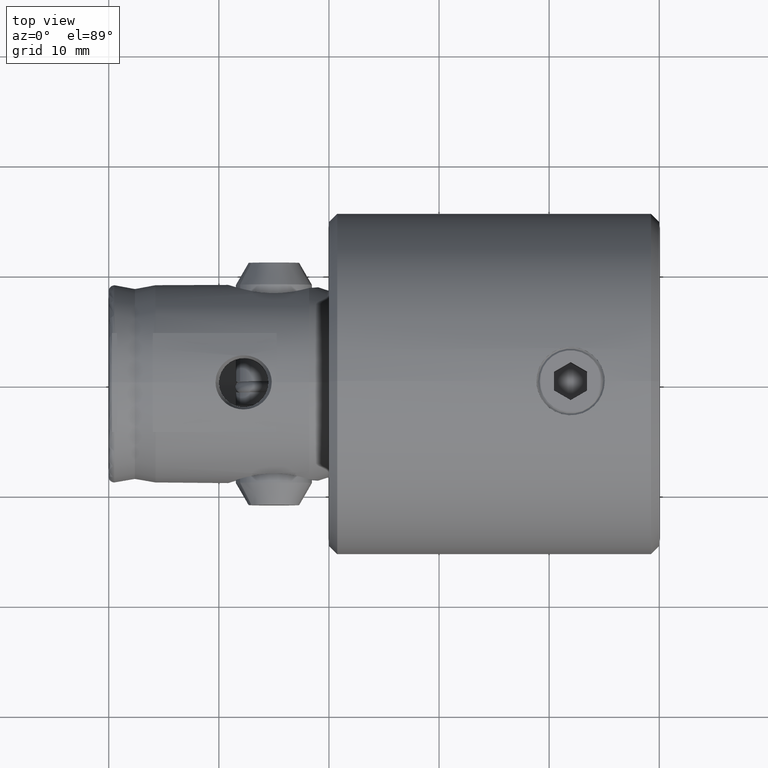
[diagram: clean part render]
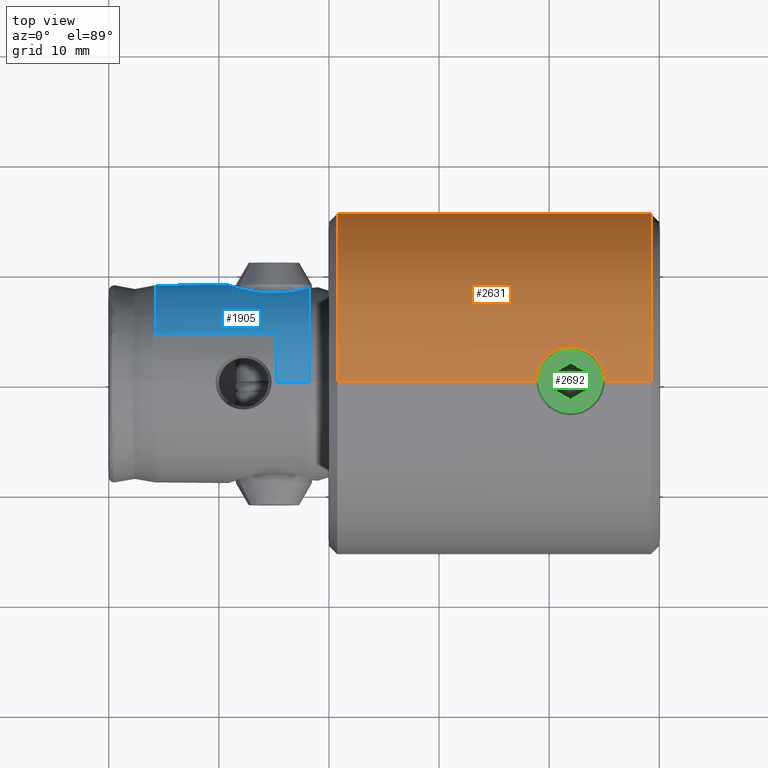
[diagram: same view with three faces highlighted in distinct colors, each labeled with its STEP entity id]
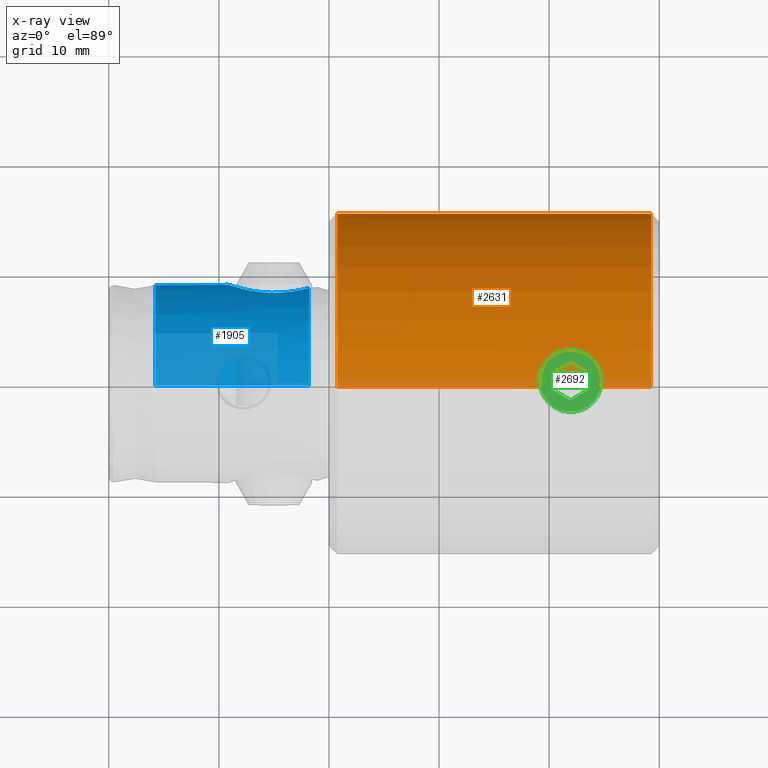
[diagram: x-ray of the same camera — body ghosted, the three highlighted faces saturated]
A machine part, top view with three faces highlighted in distinct colors.
The next image is the same camera in x-ray (body ghosted, the three faces saturated) — at least one of them is partly hidden behind the body in this view.
Their STEP definitions:

[orange] entity #2631 — the highlighted cylindrical surface (partial cylindrical patch) has radius 15.5 mm, axis along (1, 0, 0).
#18 = CARTESIAN_POINT ( 'NONE',  ( 15.19093161831337500, 3.080131874408717200, 7.645278494736486700 ) ) ;
#49 = CARTESIAN_POINT ( 'NONE',  ( 15.42543559125432600, 1.563883349797126500, 5.343100149421043300 ) ) ;
#66 = FACE_OUTER_BOUND ( 'NONE', #3696, .T. ) ;
#162 = CARTESIAN_POINT ( 'NONE',  ( 15.50000000000000000, 1.898202538678397600E-015, 29.24999999999999300 ) ) ;
#190 = AXIS2_PLACEMENT_3D ( 'NONE', #4119, #1878, #855 ) ;
#289 = CARTESIAN_POINT ( 'NONE',  ( 15.50000000000000000, 1.898202969930968600E-015, 11.15000000000000000 ) ) ;
#309 = CARTESIAN_POINT ( 'NONE',  ( 15.38501148198689500, 1.892151890150584700, 10.51393058801319000 ) ) ;
#338 = CARTESIAN_POINT ( 'NONE',  ( 15.38471761695623000, 1.908714639946675500, 5.574285974368625500 ) ) ;
#381 = DIRECTION ( 'NONE',  ( 0.0000000000000000000, 0.0000000000000000000, -1.000000000000000000 ) ) ;
#428 = ORIENTED_EDGE ( 'NONE', *, *, #3477, .T. ) ;
#580 = ORIENTED_EDGE ( 'NONE', *, *, #4219, .F. ) ;
#623 = ORIENTED_EDGE ( 'NONE', *, *, #4124, .T. ) ;
#626 = EDGE_CURVE ( 'NONE', #3496, #2128, #1032, .T. ) ;
#639 = CARTESIAN_POINT ( 'NONE',  ( -15.50000000000000000, 0.0000000000000000000, 30.00000000000000000 ) ) ;
#654 = CARTESIAN_POINT ( 'NONE',  ( 15.32398421011904000, 2.333743468943447300, 10.10047887898981000 ) ) ;
#659 = VERTEX_POINT ( 'NONE', #2174 ) ;
#807 = CARTESIAN_POINT ( 'NONE',  ( 0.0000000000000000000, 0.0000000000000000000, 30.00000000000000000 ) ) ;
#845 = LINE ( 'NONE', #639, #2488 ) ;
#855 = DIRECTION ( 'NONE',  ( 1.000000000000000000, 0.0000000000000000000, 0.0000000000000000000 ) ) ;
#953 = CARTESIAN_POINT ( 'NONE',  ( 15.50000000000000200, 0.2025497740821276800, 11.14999999999999900 ) ) ;
#964 = B_SPLINE_CURVE_WITH_KNOTS ( 'NONE', 3,
 ( #289, #953, #968, #2620, #3590, #3918, #4252, #309, #2633, #654, #2966, #999, #3293, #1322, #3607, #1397, #3008, #1039, #18, #1727, #3350, #2388, #1692, #2673, #2024, #338, #49, #2352, #2688, #3993, #3670, #2657 ),
 .UNSPECIFIED., .F., .F.,
 ( 4, 2, 2, 2, 2, 2, 2, 2, 2, 2, 2, 2, 2, 2, 2, 4 ),
 ( 0.009716551934857063600, 0.01032367954105278000, 0.01093080714724849400, 0.01153793475344420900, 0.01214506235963992400, 0.01275218996583563900, 0.01335931757203135500, 0.01396644517822706900, 0.01457357278442278500, 0.01518070039061849900, 0.01578782799681421500, 0.01639495560300992900, 0.01700208320920564700, 0.01821633842159707200, 0.01882346602779278600, 0.01943059363398850000 ),
 .UNSPECIFIED. ) ;
#968 = CARTESIAN_POINT ( 'NONE',  ( 15.49603090925379300, 0.4042348462036051700, 11.13034235379925900 ) ) ;
#999 = CARTESIAN_POINT ( 'NONE',  ( 15.26541876093223700, 2.688855372817281300, 9.605891185076549400 ) ) ;
#1008 = LINE ( 'NONE', #2444, #2649 ) ;
#1032 = LINE ( 'NONE', #2160, #1092 ) ;
#1039 = CARTESIAN_POINT ( 'NONE',  ( 15.18681554872190600, 3.100102175744615000, 7.846882900018611600 ) ) ;
#1092 = VECTOR ( 'NONE', #2185, 1000.000000000000000 ) ;
#1122 = CIRCLE ( 'NONE', #3610, 15.50000000000000000 ) ;
#1217 = VERTEX_POINT ( 'NONE', #3126 ) ;
#1322 = CARTESIAN_POINT ( 'NONE',  ( 15.21870443652431800, 2.940640067627605400, 9.052054006809472100 ) ) ;
#1392 = DIRECTION ( 'NONE',  ( 0.0000000000000000000, 0.0000000000000000000, 1.000000000000000000 ) ) ;
#1397 = CARTESIAN_POINT ( 'NONE',  ( 15.19106502022203900, 3.079476722188208400, 8.459497161349084100 ) ) ;
#1409 = CARTESIAN_POINT ( 'NONE',  ( 0.0000000000000000000, 0.0000000000000000000, 0.7500000000000006700 ) ) ;
#1468 = CARTESIAN_POINT ( 'NONE',  ( 15.50000000000000000, 1.898202538678397600E-015, 0.7500000000000006700 ) ) ;
#1487 = DIRECTION ( 'NONE',  ( 0.0000000000000000000, 0.0000000000000000000, -1.000000000000000000 ) ) ;
#1692 = CARTESIAN_POINT ( 'NONE',  ( 15.26502125744575300, 2.691127775693408900, 6.497908967070976900 ) ) ;
#1727 = CARTESIAN_POINT ( 'NONE',  ( 15.20670291572052300, 3.001300089800838400, 7.247996489077015000 ) ) ;
#1846 = CYLINDRICAL_SURFACE ( 'NONE', #3476, 15.50000000000000000 ) ;
#1878 = DIRECTION ( 'NONE',  ( -0.0000000000000000000, -0.0000000000000000000, -1.000000000000000000 ) ) ;
#2024 = CARTESIAN_POINT ( 'NONE',  ( 15.32366395083676000, 2.335809293239375300, 6.001931928870467600 ) ) ;
#2099 = DIRECTION ( 'NONE',  ( -1.000000000000000000, 0.0000000000000000000, 0.0000000000000000000 ) ) ;
#2106 = DIRECTION ( 'NONE',  ( 1.000000000000000000, 0.0000000000000000000, 0.0000000000000000000 ) ) ;
#2128 = VERTEX_POINT ( 'NONE', #3518 ) ;
#2160 = CARTESIAN_POINT ( 'NONE',  ( 15.50000000000000000, 1.898202538678397600E-015, 30.00000000000000000 ) ) ;
#2174 = CARTESIAN_POINT ( 'NONE',  ( 15.50000000000000000, -2.928304753669248300E-016, 4.949999999999999300 ) ) ;
#2185 = DIRECTION ( 'NONE',  ( 0.0000000000000000000, 0.0000000000000000000, -1.000000000000000000 ) ) ;
#2232 = CARTESIAN_POINT ( 'NONE',  ( -15.50000000000000000, 0.0000000000000000000, 0.7500000000000006700 ) ) ;
#2263 = ORIENTED_EDGE ( 'NONE', *, *, #3459, .T. ) ;
#2352 = CARTESIAN_POINT ( 'NONE',  ( 15.46853306975695800, 1.004705552767855400, 5.110386720086009600 ) ) ;
#2388 = CARTESIAN_POINT ( 'NONE',  ( 15.24773329965242600, 2.786191647179588200, 6.675876050782875400 ) ) ;
#2444 = CARTESIAN_POINT ( 'NONE',  ( 15.50000000000000000, 1.898202538678397600E-015, 30.00000000000000000 ) ) ;
#2488 = VECTOR ( 'NONE', #381, 1000.000000000000000 ) ;
#2620 = CARTESIAN_POINT ( 'NONE',  ( 15.48034332064266600, 0.8058228257305304300, 11.05042736973026200 ) ) ;
#2631 = ADVANCED_FACE ( 'NONE', ( #66 ), #1846, .T. ) ;
#2633 = CARTESIAN_POINT ( 'NONE',  ( 15.36480298398791300, 2.047847629597920400, 10.38605271729250000 ) ) ;
#2649 = VECTOR ( 'NONE', #3398, 1000.000000000000000 ) ;
#2657 = CARTESIAN_POINT ( 'NONE',  ( 15.50000000000000000, -2.928304753669248300E-016, 4.949999999999999300 ) ) ;
#2673 = CARTESIAN_POINT ( 'NONE',  ( 15.30301845369671900, 2.465901235085661700, 6.160426932238334700 ) ) ;
#2688 = CARTESIAN_POINT ( 'NONE',  ( 15.48021653027960900, 0.8080677240030369500, 5.050226149633598300 ) ) ;
#2966 = CARTESIAN_POINT ( 'NONE',  ( 15.30325759541461700, 2.464398533300785400, 9.941422867788213900 ) ) ;
#3007 = ORIENTED_EDGE ( 'NONE', *, *, #3191, .T. ) ;
#3008 = CARTESIAN_POINT ( 'NONE',  ( 15.18685742069663300, 3.099897045772575900, 8.256224057694039300 ) ) ;
#3126 = CARTESIAN_POINT ( 'NONE',  ( -15.50000000000000000, 0.0000000000000000000, 29.24999999999999300 ) ) ;
#3191 = EDGE_CURVE ( 'NONE', #2128, #659, #964, .T. ) ;
#3293 = CARTESIAN_POINT ( 'NONE',  ( 15.24808738570480000, 2.784270067994870000, 9.428156895410548800 ) ) ;
#3350 = CARTESIAN_POINT ( 'NONE',  ( 15.21855589853567300, 2.941392703344412500, 7.050355319457147600 ) ) ;
#3398 = DIRECTION ( 'NONE',  ( 0.0000000000000000000, 0.0000000000000000000, -1.000000000000000000 ) ) ;
#3459 = EDGE_CURVE ( 'NONE', #3539, #3638, #1122, .T. ) ;
#3476 = AXIS2_PLACEMENT_3D ( 'NONE', #807, #1487, #2099 ) ;
#3477 = EDGE_CURVE ( 'NONE', #659, #3539, #1008, .T. ) ;
#3496 = VERTEX_POINT ( 'NONE', #162 ) ;
#3518 = CARTESIAN_POINT ( 'NONE',  ( 15.50000000000000000, 1.898202969930968600E-015, 11.15000000000000000 ) ) ;
#3539 = VERTEX_POINT ( 'NONE', #1468 ) ;
#3590 = CARTESIAN_POINT ( 'NONE',  ( 15.46880461611808700, 1.000553366867745100, 10.99103628005412000 ) ) ;
#3607 = CARTESIAN_POINT ( 'NONE',  ( 15.20691713292811000, 3.000217432682185800, 8.855952954136844500 ) ) ;
#3610 = AXIS2_PLACEMENT_3D ( 'NONE', #1409, #1392, #2106 ) ;
#3638 = VERTEX_POINT ( 'NONE', #2232 ) ;
#3670 = CARTESIAN_POINT ( 'NONE',  ( 15.50000000000000700, 0.2053287941625960300, 4.950000000000001100 ) ) ;
#3672 = ORIENTED_EDGE ( 'NONE', *, *, #626, .T. ) ;
#3696 = EDGE_LOOP ( 'NONE', ( #623, #3672, #3007, #428, #2263, #580 ) ) ;
#3918 = CARTESIAN_POINT ( 'NONE',  ( 15.44013763749747000, 1.373744163489224700, 10.83632884165244400 ) ) ;
#3993 = CARTESIAN_POINT ( 'NONE',  ( 15.49592274272021600, 0.4079897334051477100, 4.970201146608189900 ) ) ;
#4074 = CIRCLE ( 'NONE', #190, 15.50000000000000000 ) ;
#4119 = CARTESIAN_POINT ( 'NONE',  ( 0.0000000000000000000, 0.0000000000000000000, 29.24999999999999300 ) ) ;
#4124 = EDGE_CURVE ( 'NONE', #1217, #3496, #4074, .T. ) ;
#4219 = EDGE_CURVE ( 'NONE', #1217, #3638, #845, .T. ) ;
#4252 = CARTESIAN_POINT ( 'NONE',  ( 15.42276188469091400, 1.554745292449649400, 10.73960216269118300 ) ) ;

[blue] entity #1905 — the highlighted cylindrical surface (partial cylindrical patch) has radius 9 mm, axis along (1, 0, 0).
#8 = CARTESIAN_POINT ( 'NONE',  ( -9.000000000000001800, 0.0000000000000000000, 45.75000000000000000 ) ) ;
#70 = CARTESIAN_POINT ( 'NONE',  ( 3.225396514969647700, 8.402666024262607900, 37.05503607443981900 ) ) ;
#99 = CARTESIAN_POINT ( 'NONE',  ( 3.462340803532976400, 8.307588482220916500, 36.49078937586077100 ) ) ;
#124 = B_SPLINE_CURVE_WITH_KNOTS ( 'NONE', 3,
 ( #3463, #3783, #2593, #1265, #2534, #1251, #3548, #1605, #3876, #543, #2857, #2602, #2981, #1635, #4264, #3243, #1276, #2266, #2943, #628, #3563, #2009, #3619, #983, #1293, #1680, #1013, #1620 ),
 .UNSPECIFIED., .F., .F.,
 ( 4, 2, 2, 2, 2, 2, 2, 2, 2, 2, 2, 2, 2, 4 ),
 ( 0.01131770587915490100, 0.01253723918276998000, 0.01314700583457751500, 0.01375677248638505100, 0.01436653913819258700, 0.01497630579000012300, 0.01558607244180765900, 0.01619583909361519600, 0.01741537239723026800, 0.01802513904903780400, 0.01863490570084534000, 0.01924467235265287700, 0.01985443900446041300, 0.02107397230807546800 ),
 .UNSPECIFIED. ) ;
#132 = CARTESIAN_POINT ( 'NONE',  ( -9.000000000000000000, 0.0000000000000000000, 31.79524911219962700 ) ) ;
#137 = AXIS2_PLACEMENT_3D ( 'NONE', #148, #2807, #829 ) ;
#148 = CARTESIAN_POINT ( 'NONE',  ( 0.0000000000000000000, 0.0000000000000000000, 31.79524911219962700 ) ) ;
#213 = ORIENTED_EDGE ( 'NONE', *, *, #3218, .F. ) ;
#311 = VECTOR ( 'NONE', #1071, 1000.000000000000000 ) ;
#357 = CARTESIAN_POINT ( 'NONE',  ( 2.895852612426096200, 8.522392992343856800, 32.39766578791623200 ) ) ;
#422 = CARTESIAN_POINT ( 'NONE',  ( 0.0000000000000000000, 0.0000000000000000000, 31.79524911219962700 ) ) ;
#461 = CARTESIAN_POINT ( 'NONE',  ( 1.013022636183355200, 8.944861643106168700, 39.01117003519857500 ) ) ;
#516 = EDGE_CURVE ( 'NONE', #2006, #1596, #1579, .T. ) ;
#530 = CIRCLE ( 'NONE', #137, 9.000000000000000000 ) ;
#533 = DIRECTION ( 'NONE',  ( 0.0000000000000000000, 0.0000000000000000000, 1.000000000000000000 ) ) ;
#543 = CARTESIAN_POINT ( 'NONE',  ( -2.799495018550171000, 8.554625542242874300, 37.73240655396897800 ) ) ;
#572 = ORIENTED_EDGE ( 'NONE', *, *, #516, .T. ) ;
#582 = AXIS2_PLACEMENT_3D ( 'NONE', #3892, #2279, #2982 ) ;
#628 = CARTESIAN_POINT ( 'NONE',  ( -3.649802151013831000, 8.226761399561199900, 34.26437558660431600 ) ) ;
#698 = CARTESIAN_POINT ( 'NONE',  ( 3.463403015203039700, 8.307636748204624100, 33.46923542781188800 ) ) ;
#747 = CARTESIAN_POINT ( 'NONE',  ( 3.681525506942526300, 8.212642687754923900, 35.49754678188788400 ) ) ;
#781 = CARTESIAN_POINT ( 'NONE',  ( 2.543409744209728500, 8.638854640561584500, 38.05529334456088700 ) ) ;
#801 = CARTESIAN_POINT ( 'NONE',  ( 3.391538029023080100, 8.336992790674926800, 36.68393921446604400 ) ) ;
#809 = LINE ( 'NONE', #3257, #3421 ) ;
#812 = CARTESIAN_POINT ( 'NONE',  ( 1.924780674171934200, 8.793540760925944600, 38.56311199207857500 ) ) ;
#829 = DIRECTION ( 'NONE',  ( 1.000000000000000000, 0.0000000000000000000, 0.0000000000000000000 ) ) ;
#883 = CARTESIAN_POINT ( 'NONE',  ( 7.794228634059948900, 4.500000000000000900, 45.75000000000000000 ) ) ;
#926 = AXIS2_PLACEMENT_3D ( 'NONE', #422, #2115, #3109 ) ;
#983 = CARTESIAN_POINT ( 'NONE',  ( -3.298626183112414200, 8.374110569409609200, 33.09749495123944000 ) ) ;
#1004 = CIRCLE ( 'NONE', #1774, 9.000000000000000000 ) ;
#1013 = CARTESIAN_POINT ( 'NONE',  ( -2.660235933625080500, 8.603377274519388600, 32.07251313885861100 ) ) ;
#1064 = CARTESIAN_POINT ( 'NONE',  ( 3.009885235650149300, 8.482462295192334500, 32.56677448858472700 ) ) ;
#1071 = DIRECTION ( 'NONE',  ( 0.0000000000000000000, 0.0000000000000000000, -1.000000000000000000 ) ) ;
#1082 = CYLINDRICAL_SURFACE ( 'NONE', #4235, 9.000000000000000000 ) ;
#1125 = CARTESIAN_POINT ( 'NONE',  ( 0.4120592208318080200, 8.992852505321717900, 39.14448648472331600 ) ) ;
#1137 = CARTESIAN_POINT ( 'NONE',  ( -2.487023474317282800E-020, 9.000000000000000000, 39.16395280956805900 ) ) ;
#1155 = ORIENTED_EDGE ( 'NONE', *, *, #3120, .T. ) ;
#1236 = EDGE_CURVE ( 'NONE', #3003, #2218, #1389, .T. ) ;
#1251 = CARTESIAN_POINT ( 'NONE',  ( -1.923865371437311700, 8.793758420204827800, 38.56380120527335700 ) ) ;
#1264 = DIRECTION ( 'NONE',  ( 0.0000000000000000000, 0.0000000000000000000, -1.000000000000000000 ) ) ;
#1265 = CARTESIAN_POINT ( 'NONE',  ( -1.391340555968403600, 8.893864760577782700, 38.86487811116460700 ) ) ;
#1276 = CARTESIAN_POINT ( 'NONE',  ( -3.695811705332165100, 8.206158434084416700, 35.48915109799892800 ) ) ;
#1293 = CARTESIAN_POINT ( 'NONE',  ( -3.209090536697189100, 8.409120222088830600, 32.91289974448881100 ) ) ;
#1335 = ORIENTED_EDGE ( 'NONE', *, *, #1236, .T. ) ;
#1367 = CARTESIAN_POINT ( 'NONE',  ( 0.0000000000000000000, 0.0000000000000000000, 50.00000000000000000 ) ) ;
#1389 = LINE ( 'NONE', #2777, #2727 ) ;
#1405 = CARTESIAN_POINT ( 'NONE',  ( 3.664488169284242100, 8.220919367261377200, 34.26821254202922500 ) ) ;
#1419 = ORIENTED_EDGE ( 'NONE', *, *, #3490, .T. ) ;
#1479 = CARTESIAN_POINT ( 'NONE',  ( 3.699105758788074000, 8.204671431424337400, 35.29016901430627200 ) ) ;
#1537 = CARTESIAN_POINT ( 'NONE',  ( -2.362896889755929000, 8.684279952211451100, 31.79524911219962700 ) ) ;
#1543 = CIRCLE ( 'NONE', #582, 9.000000000000001800 ) ;
#1579 = B_SPLINE_CURVE_WITH_KNOTS ( 'NONE', 3,
 ( #3965, #3981, #3045, #357, #1064, #2047, #698, #1405, #1804, #1479, #747, #2102, #3436, #99, #801, #70, #3394, #4081, #781, #2426, #812, #4033, #3078, #461, #2116, #1125, #4048, #1137 ),
 .UNSPECIFIED., .F., .F.,
 ( 4, 2, 2, 2, 2, 2, 2, 2, 2, 2, 2, 2, 2, 4 ),
 ( 0.001547136509723315800, 0.002157797095312795300, 0.002768457680902274900, 0.003989778852081233100, 0.005211100023260191300, 0.005821760608849670800, 0.006432421194439148600, 0.007043081780028628100, 0.007653742365618107700, 0.008875063536797048500, 0.009485724122386511600, 0.01009638470797597600, 0.01070704529356543800, 0.01131770587915490200 ),
 .UNSPECIFIED. ) ;
#1596 = VERTEX_POINT ( 'NONE', #2427 ) ;
#1605 = CARTESIAN_POINT ( 'NONE',  ( -2.393576954959108200, 8.677317510719168700, 38.18318469639452000 ) ) ;
#1620 = CARTESIAN_POINT ( 'NONE',  ( -2.362896889755929000, 8.684279952211451100, 31.79524911219962700 ) ) ;
#1635 = CARTESIAN_POINT ( 'NONE',  ( -3.394074927124128800, 8.335954590071203500, 36.67741285928809700 ) ) ;
#1680 = CARTESIAN_POINT ( 'NONE',  ( -2.906318574976302300, 8.520538261741363000, 32.38759075782737500 ) ) ;
#1682 = LINE ( 'NONE', #1744, #311 ) ;
#1701 = VERTEX_POINT ( 'NONE', #1537 ) ;
#1744 = CARTESIAN_POINT ( 'NONE',  ( -9.000000000000000000, 0.0000000000000000000, 50.00000000000000000 ) ) ;
#1753 = CIRCLE ( 'NONE', #926, 9.000000000000000000 ) ;
#1774 = AXIS2_PLACEMENT_3D ( 'NONE', #3814, #533, #2175 ) ;
#1792 = VERTEX_POINT ( 'NONE', #2911 ) ;
#1804 = CARTESIAN_POINT ( 'NONE',  ( 3.710283895054704100, 8.199625617515531300, 34.67352196481215300 ) ) ;
#1818 = ORIENTED_EDGE ( 'NONE', *, *, #3585, .F. ) ;
#1850 = EDGE_CURVE ( 'NONE', #3003, #2194, #1543, .T. ) ;
#1905 = ADVANCED_FACE ( 'NONE', ( #4195 ), #1082, .T. ) ;
#1948 = CARTESIAN_POINT ( 'NONE',  ( 9.000000000000000000, 1.102182119232617700E-015, 31.79524911219962700 ) ) ;
#2006 = VERTEX_POINT ( 'NONE', #4091 ) ;
#2009 = CARTESIAN_POINT ( 'NONE',  ( -3.512649766894666100, 8.286389268905358200, 33.66594692546853200 ) ) ;
#2018 = CARTESIAN_POINT ( 'NONE',  ( 7.794228634059947100, 4.500000000000000900, 34.75000000000000000 ) ) ;
#2042 = DIRECTION ( 'NONE',  ( 0.0000000000000000000, 0.0000000000000000000, -1.000000000000000000 ) ) ;
#2047 = CARTESIAN_POINT ( 'NONE',  ( 3.312762380287397800, 8.370896504934826500, 33.09379917924289300 ) ) ;
#2102 = CARTESIAN_POINT ( 'NONE',  ( 3.620075022492086300, 8.239914247522953900, 35.90183009507916300 ) ) ;
#2115 = DIRECTION ( 'NONE',  ( 0.0000000000000000000, 0.0000000000000000000, 1.000000000000000000 ) ) ;
#2116 = CARTESIAN_POINT ( 'NONE',  ( 0.8170132637749665200, 8.965136826103623900, 39.06769937397196200 ) ) ;
#2175 = DIRECTION ( 'NONE',  ( 1.000000000000000000, 0.0000000000000000000, 0.0000000000000000000 ) ) ;
#2180 = ORIENTED_EDGE ( 'NONE', *, *, #1850, .F. ) ;
#2194 = VERTEX_POINT ( 'NONE', #8 ) ;
#2218 = VERTEX_POINT ( 'NONE', #2018 ) ;
#2266 = CARTESIAN_POINT ( 'NONE',  ( -3.706437500783696500, 8.201361847548589900, 34.87696350292554100 ) ) ;
#2279 = DIRECTION ( 'NONE',  ( 0.0000000000000000000, 0.0000000000000000000, 1.000000000000000000 ) ) ;
#2294 = EDGE_LOOP ( 'NONE', ( #1818, #2899, #1419, #572, #1155, #3968, #213, #2180, #1335 ) ) ;
#2426 = CARTESIAN_POINT ( 'NONE',  ( 2.086879373168937200, 8.756119011226681800, 38.44531642035556000 ) ) ;
#2427 = CARTESIAN_POINT ( 'NONE',  ( -2.487023474317282800E-020, 9.000000000000000000, 39.16395280956805900 ) ) ;
#2534 = CARTESIAN_POINT ( 'NONE',  ( -1.575978440672697500, 8.862716122886581600, 38.77384280542384000 ) ) ;
#2593 = CARTESIAN_POINT ( 'NONE',  ( -0.8220872526984458500, 8.970552281630727300, 39.08485416867927100 ) ) ;
#2602 = CARTESIAN_POINT ( 'NONE',  ( -3.132714132039731600, 8.437954081719237100, 37.22883375925555100 ) ) ;
#2727 = VECTOR ( 'NONE', #3458, 1000.000000000000000 ) ;
#2777 = CARTESIAN_POINT ( 'NONE',  ( 7.794228634059947100, 4.499999999999999100, 50.00000000000000000 ) ) ;
#2807 = DIRECTION ( 'NONE',  ( 0.0000000000000000000, 0.0000000000000000000, 1.000000000000000000 ) ) ;
#2815 = EDGE_CURVE ( 'NONE', #1701, #3519, #1753, .T. ) ;
#2857 = CARTESIAN_POINT ( 'NONE',  ( -2.918223267508852600, 8.514513484589336700, 37.57039774868360400 ) ) ;
#2899 = ORIENTED_EDGE ( 'NONE', *, *, #3167, .T. ) ;
#2911 = CARTESIAN_POINT ( 'NONE',  ( 9.000000000000000000, 1.102182119232617700E-015, 34.75000000000000000 ) ) ;
#2943 = CARTESIAN_POINT ( 'NONE',  ( -3.696668575392205700, 8.205808937000853100, 34.67282159399240300 ) ) ;
#2981 = CARTESIAN_POINT ( 'NONE',  ( -3.228953985650791800, 8.401293929937914100, 37.04791882474323500 ) ) ;
#2982 = DIRECTION ( 'NONE',  ( 1.000000000000000000, 0.0000000000000000000, 0.0000000000000000000 ) ) ;
#3003 = VERTEX_POINT ( 'NONE', #883 ) ;
#3040 = DIRECTION ( 'NONE',  ( -1.000000000000000000, 0.0000000000000000000, 0.0000000000000000000 ) ) ;
#3045 = CARTESIAN_POINT ( 'NONE',  ( 2.646701209583156800, 8.603029546388747000, 32.08156190997902300 ) ) ;
#3078 = CARTESIAN_POINT ( 'NONE',  ( 1.393063488794642900, 8.893601002514062200, 38.86411270039280900 ) ) ;
#3109 = DIRECTION ( 'NONE',  ( 1.000000000000000000, 0.0000000000000000000, 0.0000000000000000000 ) ) ;
#3120 = EDGE_CURVE ( 'NONE', #1596, #1701, #124, .T. ) ;
#3167 = EDGE_CURVE ( 'NONE', #1792, #3187, #809, .T. ) ;
#3187 = VERTEX_POINT ( 'NONE', #1948 ) ;
#3218 = EDGE_CURVE ( 'NONE', #2194, #3519, #1682, .T. ) ;
#3243 = CARTESIAN_POINT ( 'NONE',  ( -3.633711737829310500, 8.234764079627529700, 35.90253890190206900 ) ) ;
#3257 = CARTESIAN_POINT ( 'NONE',  ( 9.000000000000000000, 1.102182119232617700E-015, 50.00000000000000000 ) ) ;
#3394 = CARTESIAN_POINT ( 'NONE',  ( 3.130501629220358700, 8.438769778485513100, 37.23266495995192600 ) ) ;
#3421 = VECTOR ( 'NONE', #1264, 1000.000000000000000 ) ;
#3436 = CARTESIAN_POINT ( 'NONE',  ( 3.576262880894908800, 8.259187250357769000, 36.10045673348368900 ) ) ;
#3458 = DIRECTION ( 'NONE',  ( 0.0000000000000000000, 0.0000000000000000000, -1.000000000000000000 ) ) ;
#3463 = CARTESIAN_POINT ( 'NONE',  ( -2.487023474317282800E-020, 9.000000000000000000, 39.16395280956805900 ) ) ;
#3490 = EDGE_CURVE ( 'NONE', #3187, #2006, #530, .T. ) ;
#3519 = VERTEX_POINT ( 'NONE', #132 ) ;
#3548 = CARTESIAN_POINT ( 'NONE',  ( -2.086997798544200300, 8.756111580491451100, 38.44532814966650100 ) ) ;
#3563 = CARTESIAN_POINT ( 'NONE',  ( -3.612497686747110100, 8.243349802352305700, 34.06062750825752500 ) ) ;
#3585 = EDGE_CURVE ( 'NONE', #1792, #2218, #1004, .T. ) ;
#3619 = CARTESIAN_POINT ( 'NONE',  ( -3.449966827168453200, 8.312905112898244300, 33.47333919116832100 ) ) ;
#3783 = CARTESIAN_POINT ( 'NONE',  ( -0.4088599969152618100, 9.000000000000003600, 39.16395280956807300 ) ) ;
#3814 = CARTESIAN_POINT ( 'NONE',  ( 0.0000000000000000000, 0.0000000000000000000, 34.75000000000000000 ) ) ;
#3876 = CARTESIAN_POINT ( 'NONE',  ( -2.537666760067076100, 8.635915582133261400, 38.03848380785912300 ) ) ;
#3892 = CARTESIAN_POINT ( 'NONE',  ( 0.0000000000000000000, 0.0000000000000000000, 45.75000000000000000 ) ) ;
#3965 = CARTESIAN_POINT ( 'NONE',  ( 2.362896889755931300, 8.684279952211451100, 31.79524911219962700 ) ) ;
#3968 = ORIENTED_EDGE ( 'NONE', *, *, #2815, .T. ) ;
#3981 = CARTESIAN_POINT ( 'NONE',  ( 2.510912085628576000, 8.644006648277372300, 31.93327097666902100 ) ) ;
#4033 = CARTESIAN_POINT ( 'NONE',  ( 1.578600780290632300, 8.862232186881454900, 38.77239472907695000 ) ) ;
#4048 = CARTESIAN_POINT ( 'NONE',  ( 0.2047296981560663700, 8.999999999999996400, 39.16395280956805900 ) ) ;
#4081 = CARTESIAN_POINT ( 'NONE',  ( 2.809872554484113700, 8.553135070071318700, 37.74231595443654900 ) ) ;
#4091 = CARTESIAN_POINT ( 'NONE',  ( 2.362896889755931300, 8.684279952211451100, 31.79524911219962700 ) ) ;
#4195 = FACE_OUTER_BOUND ( 'NONE', #2294, .T. ) ;
#4235 = AXIS2_PLACEMENT_3D ( 'NONE', #1367, #2042, #3040 ) ;
#4264 = CARTESIAN_POINT ( 'NONE',  ( -3.463510055642138800, 8.307099265366721500, 36.48731650923354400 ) ) ;

[green] entity #2692 — the highlighted planar face has unit normal (0, -0, -1).
#23 = VERTEX_POINT ( 'NONE', #2992 ) ;
#98 = DIRECTION ( 'NONE',  ( -3.549874073494571300E-030, -0.4362888354310705500, 0.8998066748353227300 ) ) ;
#113 = ORIENTED_EDGE ( 'NONE', *, *, #2840, .F. ) ;
#173 = FACE_OUTER_BOUND ( 'NONE', #2268, .T. ) ;
#217 = DIRECTION ( 'NONE',  ( 6.015064402310234600E-030, -0.5611110211866623400, -0.8277405522884940800 ) ) ;
#222 = LINE ( 'NONE', #3255, #3030 ) ;
#265 = EDGE_CURVE ( 'NONE', #3343, #1523, #510, .T. ) ;
#365 = EDGE_CURVE ( 'NONE', #23, #3522, #2791, .T. ) ;
#417 = AXIS2_PLACEMENT_3D ( 'NONE', #2264, #1245, #3850 ) ;
#495 = LINE ( 'NONE', #1113, #1944 ) ;
#510 = LINE ( 'NONE', #3346, #1340 ) ;
#609 = CARTESIAN_POINT ( 'NONE',  ( 4.417621069237667200E-030, 1.473545637607373800E-029, -2.799999999999984700 ) ) ;
#672 = DIRECTION ( 'NONE',  ( -7.494178599599606500E-030, 0.9973998566177285600, -0.07206612254682816200 ) ) ;
#697 = EDGE_LOOP ( 'NONE', ( #1472, #3747, #3754, #1977, #113, #1200 ) ) ;
#989 = DIRECTION ( 'NONE',  ( 1.000000000000000000, -1.577721810442030600E-030, 1.577721810442032700E-030 ) ) ;
#1113 = CARTESIAN_POINT ( 'NONE',  ( 0.0000000000000000000, -0.9718727973821398300, -1.433688692048787900 ) ) ;
#1157 = DIRECTION ( 'NONE',  ( -7.888609052210109600E-030, -0.9973998566177285600, 0.07206612254682802400 ) ) ;
#1182 = CARTESIAN_POINT ( 'NONE',  ( 0.0000000000000000000, -0.9718727973821398300, -1.433688692048787900 ) ) ;
#1200 = ORIENTED_EDGE ( 'NONE', *, *, #365, .F. ) ;
#1245 = DIRECTION ( 'NONE',  ( -1.000000000000000000, 1.577721810442030600E-030, 3.155443620884061200E-030 ) ) ;
#1279 = AXIS2_PLACEMENT_3D ( 'NONE', #2960, #989, #1311 ) ;
#1311 = DIRECTION ( 'NONE',  ( 1.577721810442032700E-030, 5.262662991454935300E-030, -1.000000000000000000 ) ) ;
#1327 = PLANE ( 'NONE',  #1279 ) ;
#1340 = VECTOR ( 'NONE', #1378, 1000.000000000000100 ) ;
#1378 = DIRECTION ( 'NONE',  ( 3.549874073494571300E-030, 0.4362888354310705500, -0.8998066748353227300 ) ) ;
#1472 = ORIENTED_EDGE ( 'NONE', *, *, #3806, .F. ) ;
#1492 = DIRECTION ( 'NONE',  ( -1.000000000000000000, 1.577721810442030600E-030, 3.155443620884061200E-030 ) ) ;
#1497 = LINE ( 'NONE', #2634, #2723 ) ;
#1506 = VECTOR ( 'NONE', #1157, 1000.000000000000100 ) ;
#1523 = VERTEX_POINT ( 'NONE', #2360 ) ;
#1610 = VERTEX_POINT ( 'NONE', #3149 ) ;
#1809 = CARTESIAN_POINT ( 'NONE',  ( 0.0000000000000000000, 0.7556744297416637700, -1.558510877804415900 ) ) ;
#1900 = VERTEX_POINT ( 'NONE', #2721 ) ;
#1911 = EDGE_CURVE ( 'NONE', #1900, #1610, #1497, .T. ) ;
#1944 = VECTOR ( 'NONE', #98, 1000.000000000000100 ) ;
#1977 = ORIENTED_EDGE ( 'NONE', *, *, #1911, .F. ) ;
#2056 = CIRCLE ( 'NONE', #3055, 2.799999999999984700 ) ;
#2202 = EDGE_CURVE ( 'NONE', #1610, #3343, #222, .T. ) ;
#2264 = CARTESIAN_POINT ( 'NONE',  ( 0.0000000000000000000, 0.0000000000000000000, 0.0000000000000000000 ) ) ;
#2268 = EDGE_LOOP ( 'NONE', ( #3909, #3575 ) ) ;
#2328 = VECTOR ( 'NONE', #217, 999.9999999999998900 ) ;
#2360 = CARTESIAN_POINT ( 'NONE',  ( 0.0000000000000000000, 1.727547227123801900, -0.1248221857556245500 ) ) ;
#2409 = DIRECTION ( 'NONE',  ( 1.577721810442032700E-030, 5.262662991454935300E-030, -1.000000000000000000 ) ) ;
#2441 = CIRCLE ( 'NONE', #417, 2.799999999999984700 ) ;
#2455 = CARTESIAN_POINT ( 'NONE',  ( 8.835242138475335900E-030, 1.222509309741130900E-015, 2.800000000000000700 ) ) ;
#2529 = VERTEX_POINT ( 'NONE', #609 ) ;
#2634 = CARTESIAN_POINT ( 'NONE',  ( 0.0000000000000000000, -1.727547227123815700, 0.1248221857555872600 ) ) ;
#2692 = ADVANCED_FACE ( 'NONE', ( #3473, #173 ), #1327, .F. ) ;
#2721 = CARTESIAN_POINT ( 'NONE',  ( 0.0000000000000000000, -1.727547227123815700, 0.1248221857555872600 ) ) ;
#2723 = VECTOR ( 'NONE', #3608, 1000.000000000000200 ) ;
#2791 = LINE ( 'NONE', #1809, #1506 ) ;
#2811 = EDGE_CURVE ( 'NONE', #2849, #2529, #2056, .T. ) ;
#2840 = EDGE_CURVE ( 'NONE', #3522, #1900, #495, .T. ) ;
#2849 = VERTEX_POINT ( 'NONE', #2455 ) ;
#2878 = CARTESIAN_POINT ( 'NONE',  ( 0.0000000000000000000, 1.727547227123801900, -0.1248221857556245500 ) ) ;
#2960 = CARTESIAN_POINT ( 'NONE',  ( 0.0000000000000000000, 0.0000000000000000000, 0.0000000000000000000 ) ) ;
#2992 = CARTESIAN_POINT ( 'NONE',  ( 0.0000000000000000000, 0.7556744297416637700, -1.558510877804415900 ) ) ;
#3030 = VECTOR ( 'NONE', #672, 1000.000000000000000 ) ;
#3055 = AXIS2_PLACEMENT_3D ( 'NONE', #4094, #1492, #2409 ) ;
#3149 = CARTESIAN_POINT ( 'NONE',  ( 0.0000000000000000000, -0.7556744297416672100, 1.558510877804369500 ) ) ;
#3255 = CARTESIAN_POINT ( 'NONE',  ( 0.0000000000000000000, -0.7556744297416672100, 1.558510877804369500 ) ) ;
#3343 = VERTEX_POINT ( 'NONE', #3570 ) ;
#3346 = CARTESIAN_POINT ( 'NONE',  ( 0.0000000000000000000, 0.9718727973821416100, 1.433688692048791000 ) ) ;
#3473 = FACE_BOUND ( 'NONE', #697, .T. ) ;
#3522 = VERTEX_POINT ( 'NONE', #1182 ) ;
#3570 = CARTESIAN_POINT ( 'NONE',  ( 0.0000000000000000000, 0.9718727973821416100, 1.433688692048791000 ) ) ;
#3575 = ORIENTED_EDGE ( 'NONE', *, *, #2811, .T. ) ;
#3608 = DIRECTION ( 'NONE',  ( -5.398766820106318500E-030, 0.5611110211866621200, 0.8277405522884939700 ) ) ;
#3747 = ORIENTED_EDGE ( 'NONE', *, *, #265, .F. ) ;
#3754 = ORIENTED_EDGE ( 'NONE', *, *, #2202, .F. ) ;
#3806 = EDGE_CURVE ( 'NONE', #1523, #23, #3861, .T. ) ;
#3850 = DIRECTION ( 'NONE',  ( 1.577721810442032700E-030, 5.262662991454935300E-030, -1.000000000000000000 ) ) ;
#3861 = LINE ( 'NONE', #2878, #2328 ) ;
#3909 = ORIENTED_EDGE ( 'NONE', *, *, #4167, .T. ) ;
#4094 = CARTESIAN_POINT ( 'NONE',  ( 0.0000000000000000000, 0.0000000000000000000, 0.0000000000000000000 ) ) ;
#4167 = EDGE_CURVE ( 'NONE', #2529, #2849, #2441, .T. ) ;